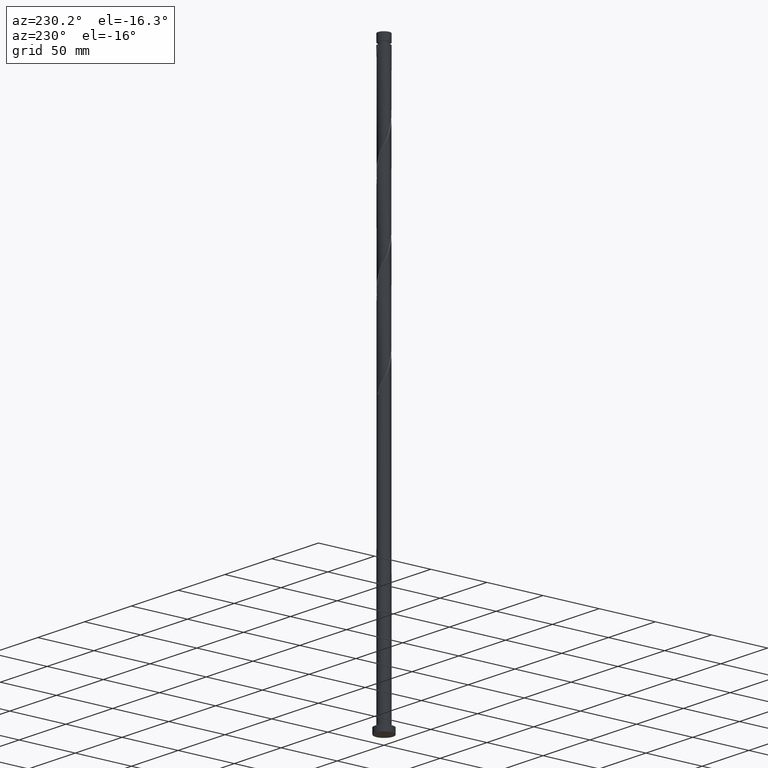
[diagram: clean part render]
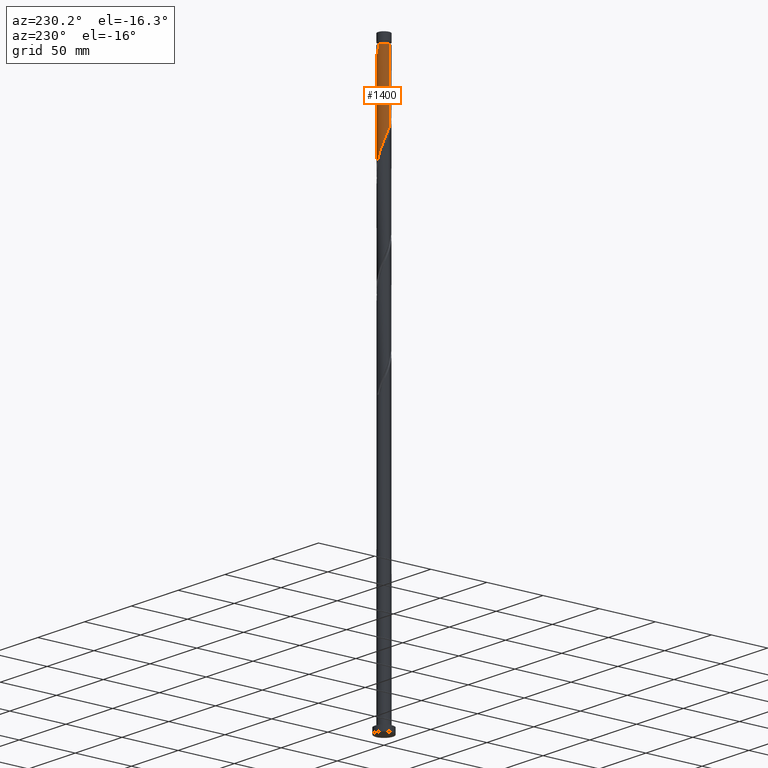
[diagram: same view with one face highlighted and labeled with its STEP entity id]
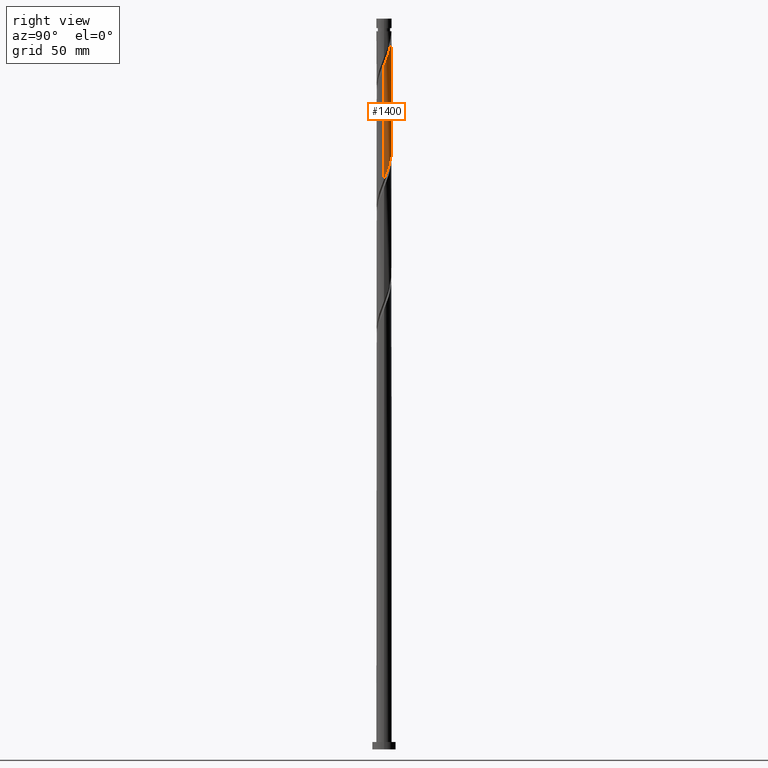
[diagram: same view with one face highlighted and labeled with its STEP entity id]
A machine part, auxiliary view. The second image highlights one B-rep face of the part: STEP entity #1400.
A second angle (right view) of the same face is appended — the face is thin or edge-on in the first view.
In plain terms, the highlighted cylindrical surface (edge-blend (fillet) strip) has radius 5.25 mm, axis along (-0, -0, -1).
Its self-contained STEP definition (entity closure, byte-faithful):
#10 = CARTESIAN_POINT ( 'NONE',  ( 5.249999999999996447, 0.5065190283771672242, 391.1464278282513760 ) ) ;
#26 = EDGE_CURVE ( 'NONE', #2088, #1230, #1287, .T. ) ;
#27 = DIRECTION ( 'NONE',  ( -1.000000000000000000, 0.000000000000000000, 0.000000000000000000 ) ) ;
#31 = ORIENTED_EDGE ( 'NONE', *, *, #1793, .F. ) ;
#50 = CARTESIAN_POINT ( 'NONE',  ( 4.662363351767596420, 2.468246253030201842, 396.3281674115050919 ) ) ;
#67 = CARTESIAN_POINT ( 'NONE',  ( -2.899323907032592462, 4.376804871376981154, 418.4635840781717206 ) ) ;
#105 = CARTESIAN_POINT ( 'NONE',  ( 5.250000000000000000, 6.429395695523604153E-16, 500.0000000000000000 ) ) ;
#123 = CARTESIAN_POINT ( 'NONE',  ( 2.028402190898310309, 4.842322227192129347, 405.4427507448383494 ) ) ;
#160 = DIRECTION ( 'NONE',  ( -1.000000000000000000, 0.000000000000000000, 0.000000000000000000 ) ) ;
#193 = CYLINDRICAL_SURFACE ( 'NONE', #394, 5.250000000000000000 ) ;
#205 = CARTESIAN_POINT ( 'NONE',  ( 5.153163662742280771, 1.003695304857282311, 392.4219174115050919 ) ) ;
#239 = CARTESIAN_POINT ( 'NONE',  ( -1.511237625729912715, 5.054308303623891163, 414.5573340781717206 ) ) ;
#262 = CARTESIAN_POINT ( 'NONE',  ( -4.642542048837808188, 2.505329302562051108, 424.9740007448384063 ) ) ;
#325 = CARTESIAN_POINT ( 'NONE',  ( 4.642542048837816182, 2.505329302562050220, 474.4531674115049782 ) ) ;
#336 = CARTESIAN_POINT ( 'NONE',  ( 1.003695304857286530, 5.153163662742286988, 486.1719174115050350 ) ) ;
#349 = CARTESIAN_POINT ( 'NONE',  ( 5.145000000000004903, 1.044736808961955976, 470.5469174115050350 ) ) ;
#394 = AXIS2_PLACEMENT_3D ( 'NONE', #1970, #1010, #27 ) ;
#412 = CARTESIAN_POINT ( 'NONE',  ( -3.697486482897444304, 3.727075758391649174, 421.0677507448384631 ) ) ;
#419 =( BOUNDED_CURVE ( )  B_SPLINE_CURVE ( 2, ( #524, #1740, #1216, #602, #745, #2041, #1226, #262, #1383, #1878, #412, #739, #67, #1346, #1373, #239, #2004, #2014, #560, #1858, #1570, #946, #123, #936, #778, #2055, #609, #449, #1982, #50, #1624, #516, #205, #10, #1141 ),
 .UNSPECIFIED., .F., .T. ) 
 B_SPLINE_CURVE_WITH_KNOTS ( ( 3, 2, 2, 2, 2, 2, 2, 2, 2, 2, 2, 2, 2, 2, 2, 2, 2, 3 ),
 ( 0.4295286902180871502, 0.4296875000000000000, 0.4375000000000000000, 0.4453125000000000000, 0.4531250000000000000, 0.4609375000000000000, 0.4687500000000000000, 0.4765625000000000000, 0.4843750000000000000, 0.4921875000000000000, 0.5000000000000000000, 0.5078125000000000000, 0.5156250000000000000, 0.5234375000000000000, 0.5312500000000000000, 0.5390625000000000000, 0.5468750000000000000, 0.5545286902180869282 ),
 .UNSPECIFIED. ) 
 CURVE ( )  GEOMETRIC_REPRESENTATION_ITEM ( )  RATIONAL_B_SPLINE_CURVE ( ( 0.9089165573359491157, 0.9090019243628539858, 0.9090909090909458090, 0.9047133878838519161, 0.9090909090909458090, 0.9047133878838519161, 0.9090909090909458090, 0.9047133878838519161, 0.9090909090909458090, 0.9047133878838519161, 0.9090909090909458090, 0.9047133878838519161, 0.9090909090909458090, 0.9047133878838519161, 0.9090909090909458090, 0.9047133878838519161, 0.9090909090909458090, 0.9047133878838519161, 0.9090909090909458090, 0.9047133878838519161, 0.9090909090909458090, 0.9047133878838519161, 0.9090909090909458090, 0.9047133878838519161, 0.9090909090909458090, 0.9047133878838519161, 0.9090909090909458090, 0.9047133878838519161, 0.9090909090909458090, 0.9047133878838519161, 0.9090909090909458090, 0.9047133878838519161, 0.9090909090909458090, 0.9048023726119438503, 0.9089165573359490047 ) ) 
 REPRESENTATION_ITEM ( '' )  );
#441 = LINE ( 'NONE', #105, #1473 ) ;
#449 = CARTESIAN_POINT ( 'NONE',  ( 4.091246390986365888, 3.330401561034980862, 398.9323340781717206 ) ) ;
#491 = ORIENTED_EDGE ( 'NONE', *, *, #26, .F. ) ;
#516 = CARTESIAN_POINT ( 'NONE',  ( 5.054308303623891163, 1.511237625729912493, 393.7240007448384063 ) ) ;
#524 = CARTESIAN_POINT ( 'NONE',  ( -5.249999999999999112, -2.814383212696275696E-15, 431.5371143895019941 ) ) ;
#550 = CARTESIAN_POINT ( 'NONE',  ( 5.250000000000006217, 1.054927747275550709E-15, 467.8900537668414472 ) ) ;
#560 = CARTESIAN_POINT ( 'NONE',  ( 0.02092277735234869540, 5.249958308157109954, 410.6510840781717775 ) ) ;
#602 = CARTESIAN_POINT ( 'NONE',  ( -5.247897594453547754, 0.5379985386893459953, 430.1823340781715501 ) ) ;
#607 = VERTEX_POINT ( 'NONE', #1350 ) ;
#609 = CARTESIAN_POINT ( 'NONE',  ( 3.727075758391648730, 3.697486482897444304, 400.2344174115050919 ) ) ;
#632 = CARTESIAN_POINT ( 'NONE',  ( 5.250000000000000000, 3.394034324715177098E-15, 389.8704477228353085 ) ) ;
#644 = CARTESIAN_POINT ( 'NONE',  ( 5.250000000000006217, 0.01046143021484346666, 467.9164073213586335 ) ) ;
#667 = CIRCLE ( 'NONE', #837, 5.249999999999952927 ) ;
#689 = CARTESIAN_POINT ( 'NONE',  ( -0.02092277735234544106, 5.249958308157117060, 488.7760840781716070 ) ) ;
#739 = CARTESIAN_POINT ( 'NONE',  ( -3.330401561034982638, 4.091246390986364112, 419.7656674115050919 ) ) ;
#741 = ORIENTED_EDGE ( 'NONE', *, *, #820, .T. ) ;
#745 = CARTESIAN_POINT ( 'NONE',  ( -5.145000000000000462, 1.044736808961956642, 428.8802507448384063 ) ) ;
#778 = CARTESIAN_POINT ( 'NONE',  ( 2.934117214179494226, 4.353556726798855081, 402.8385840781717775 ) ) ;
#818 = LINE ( 'NONE', #1273, #1949 ) ;
#820 = EDGE_CURVE ( 'NONE', #2088, #1796, #441, .T. ) ;
#837 = AXIS2_PLACEMENT_3D ( 'NONE', #1962, #1113, #160 ) ;
#849 = CARTESIAN_POINT ( 'NONE',  ( 4.842322227192136452, 2.028402190898310309, 473.1510840781716070 ) ) ;
#936 = CARTESIAN_POINT ( 'NONE',  ( 2.505329302562051108, 4.642542048837808188, 404.1406674115050350 ) ) ;
#946 = CARTESIAN_POINT ( 'NONE',  ( 1.551475079234565291, 5.042102405546450505, 406.7448340781717206 ) ) ;
#967 = CARTESIAN_POINT ( 'NONE',  ( 1.511237625729916711, 5.054308303623898269, 484.8698340781716638 ) ) ;
#1010 = DIRECTION ( 'NONE',  ( -0.000000000000000000, -0.000000000000000000, -1.000000000000000000 ) ) ;
#1052 = EDGE_CURVE ( 'NONE', #1188, #1230, #667, .T. ) ;
#1113 = DIRECTION ( 'NONE',  ( -0.000000000000000000, -0.000000000000000000, -1.000000000000000000 ) ) ;
#1140 = CARTESIAN_POINT ( 'NONE',  ( 5.250000000000006217, 1.054927747275550709E-15, 467.8900537668414472 ) ) ;
#1141 = CARTESIAN_POINT ( 'NONE',  ( 5.250000000000000000, 3.394034324715176704E-15, 389.8704477228353085 ) ) ;
#1151 = CARTESIAN_POINT ( 'NONE',  ( 5.247897594453554859, 0.5379985386893471055, 469.2448340781716070 ) ) ;
#1163 = CARTESIAN_POINT ( 'NONE',  ( 3.330401561034987967, 4.091246390986367665, 479.6615007448382926 ) ) ;
#1188 = VERTEX_POINT ( 'NONE', #1932 ) ;
#1216 = CARTESIAN_POINT ( 'NONE',  ( -5.249958308157109954, 0.02092277735234911867, 431.4844174115050350 ) ) ;
#1226 = CARTESIAN_POINT ( 'NONE',  ( -4.842322227192129347, 2.028402190898309421, 426.2760840781718343 ) ) ;
#1230 = VERTEX_POINT ( 'NONE', #1795 ) ;
#1273 = CARTESIAN_POINT ( 'NONE',  ( -5.250000000000000000, 0.000000000000000000, 500.0000000000000000 ) ) ;
#1284 = CARTESIAN_POINT ( 'NONE',  ( 2.899323907032597347, 4.376804871376984707, 480.9635840781716070 ) ) ;
#1286 = FACE_OUTER_BOUND ( 'NONE', #1323, .T. ) ;
#1287 =( BOUNDED_CURVE ( )  B_SPLINE_CURVE ( 2, ( #1140, #644, #1981, #1151, #349, #1969, #849, #325, #1790, #1941, #1298, #1163, #1284, #1813, #1489, #967, #336, #1465, #689, #1603, #1612 ),
 .UNSPECIFIED., .F., .T. ) 
 B_SPLINE_CURVE_WITH_KNOTS ( ( 3, 2, 2, 2, 2, 2, 2, 2, 2, 2, 3 ),
 ( 0.6795286902180868172, 0.6796875000000000000, 0.6875000000000000000, 0.6953125000000000000, 0.7031250000000000000, 0.7109375000000000000, 0.7187499999999998890, 0.7265624999999998890, 0.7343749999999998890, 0.7421874999999998890, 0.7499999999999998890 ),
 .UNSPECIFIED. ) 
 CURVE ( )  GEOMETRIC_REPRESENTATION_ITEM ( )  RATIONAL_B_SPLINE_CURVE ( ( 0.9089165573359545558, 0.9090019243628595369, 0.9090909090909514711, 0.9047133878838575782, 0.9090909090909514711, 0.9047133878838575782, 0.9090909090909514711, 0.9047133878838575782, 0.9090909090909514711, 0.9047133878838575782, 0.9090909090909514711, 0.9047133878838575782, 0.9090909090909514711, 0.9047133878838575782, 0.9090909090909514711, 0.9047133878838575782, 0.9090909090909514711, 0.9047133878838575782, 0.9090909090909514711, 0.9047133878838575782, 0.9090909090909514711 ) ) 
 REPRESENTATION_ITEM ( '' )  );
#1298 = CARTESIAN_POINT ( 'NONE',  ( 3.697486482897451410, 3.727075758391652283, 478.3594174115049782 ) ) ;
#1323 = EDGE_LOOP ( 'NONE', ( #491, #741, #1581, #31, #1802 ) ) ;
#1346 = CARTESIAN_POINT ( 'NONE',  ( -2.468246253030200510, 4.662363351767596420, 417.1615007448383494 ) ) ;
#1350 = CARTESIAN_POINT ( 'NONE',  ( -5.249999999999999112, -2.814383212696275696E-15, 431.5371143895019372 ) ) ;
#1352 = EDGE_CURVE ( 'NONE', #607, #1796, #419, .T. ) ;
#1373 = CARTESIAN_POINT ( 'NONE',  ( -1.989741939380056612, 4.858335827695745124, 415.8594174115050350 ) ) ;
#1383 = CARTESIAN_POINT ( 'NONE',  ( -4.353556726798856857, 2.934117214179492894, 423.6719174115050919 ) ) ;
#1400 = ADVANCED_FACE ( 'NONE', ( #1286 ), #193, .T. ) ;
#1465 = CARTESIAN_POINT ( 'NONE',  ( 0.4961529839846509637, 5.252019021860680148, 487.4740007448382926 ) ) ;
#1473 = VECTOR ( 'NONE', #2048, 1000.000000000000000 ) ;
#1489 = CARTESIAN_POINT ( 'NONE',  ( 1.989741939380060387, 4.858335827695750453, 483.5677507448382926 ) ) ;
#1570 = CARTESIAN_POINT ( 'NONE',  ( 1.044736808961957308, 5.145000000000000462, 408.0469174115050919 ) ) ;
#1581 = ORIENTED_EDGE ( 'NONE', *, *, #1352, .F. ) ;
#1603 = CARTESIAN_POINT ( 'NONE',  ( -0.5379985386893393340, 5.247897594453554859, 490.0781674115049782 ) ) ;
#1612 = CARTESIAN_POINT ( 'NONE',  ( -1.044736808962002828, 5.145000000000002238, 491.3802507448386905 ) ) ;
#1624 = CARTESIAN_POINT ( 'NONE',  ( 4.858335827695745124, 1.989741939380055280, 395.0260840781716638 ) ) ;
#1740 = CARTESIAN_POINT ( 'NONE',  ( -5.249999999999998224, 0.01046143021486885781, 431.5107608349845805 ) ) ;
#1781 = DIRECTION ( 'NONE',  ( -0.000000000000000000, -0.000000000000000000, -1.000000000000000000 ) ) ;
#1790 = CARTESIAN_POINT ( 'NONE',  ( 4.353556726798862186, 2.934117214179496447, 475.7552507448382926 ) ) ;
#1793 = EDGE_CURVE ( 'NONE', #1188, #607, #818, .T. ) ;
#1795 = CARTESIAN_POINT ( 'NONE',  ( -1.044736808962002828, 5.145000000000002238, 491.3802507448386905 ) ) ;
#1796 = VERTEX_POINT ( 'NONE', #632 ) ;
#1802 = ORIENTED_EDGE ( 'NONE', *, *, #1052, .T. ) ;
#1813 = CARTESIAN_POINT ( 'NONE',  ( 2.468246253030207171, 4.662363351767599084, 482.2656674115049782 ) ) ;
#1858 = CARTESIAN_POINT ( 'NONE',  ( 0.5379985386893462174, 5.247897594453547754, 409.3490007448382926 ) ) ;
#1878 = CARTESIAN_POINT ( 'NONE',  ( -4.064571404759904638, 3.362905125796934680, 422.3698340781716638 ) ) ;
#1932 = CARTESIAN_POINT ( 'NONE',  ( -5.249999999999952927, 0.000000000000000000, 491.3802507448383494 ) ) ;
#1941 = CARTESIAN_POINT ( 'NONE',  ( 4.064571404759911744, 3.362905125796937789, 477.0573340781716070 ) ) ;
#1949 = VECTOR ( 'NONE', #1781, 1000.000000000000000 ) ;
#1962 = CARTESIAN_POINT ( 'NONE',  ( 0.000000000000000000, 0.000000000000000000, 491.3802507448383494 ) ) ;
#1969 = CARTESIAN_POINT ( 'NONE',  ( 5.042102405546458499, 1.551475079234564847, 471.8490007448382926 ) ) ;
#1970 = CARTESIAN_POINT ( 'NONE',  ( 0.000000000000000000, 0.000000000000000000, 500.0000000000000000 ) ) ;
#1981 = CARTESIAN_POINT ( 'NONE',  ( 5.249958308157117060, 0.02092277735234565963, 467.9427507448383494 ) ) ;
#1982 = CARTESIAN_POINT ( 'NONE',  ( 4.376804871376982931, 2.899323907032591130, 397.6302507448384063 ) ) ;
#2004 = CARTESIAN_POINT ( 'NONE',  ( -1.003695304857281201, 5.153163662742282547, 413.2552507448382926 ) ) ;
#2014 = CARTESIAN_POINT ( 'NONE',  ( -0.4961529839846487988, 5.252019021860672154, 411.9531674115050350 ) ) ;
#2041 = CARTESIAN_POINT ( 'NONE',  ( -5.042102405546450505, 1.551475079234566179, 427.5781674115049782 ) ) ;
#2048 = DIRECTION ( 'NONE',  ( -0.000000000000000000, -0.000000000000000000, -1.000000000000000000 ) ) ;
#2055 = CARTESIAN_POINT ( 'NONE',  ( 3.362905125796934680, 4.064571404759904638, 401.5365007448384063 ) ) ;
#2088 = VERTEX_POINT ( 'NONE', #550 ) ;